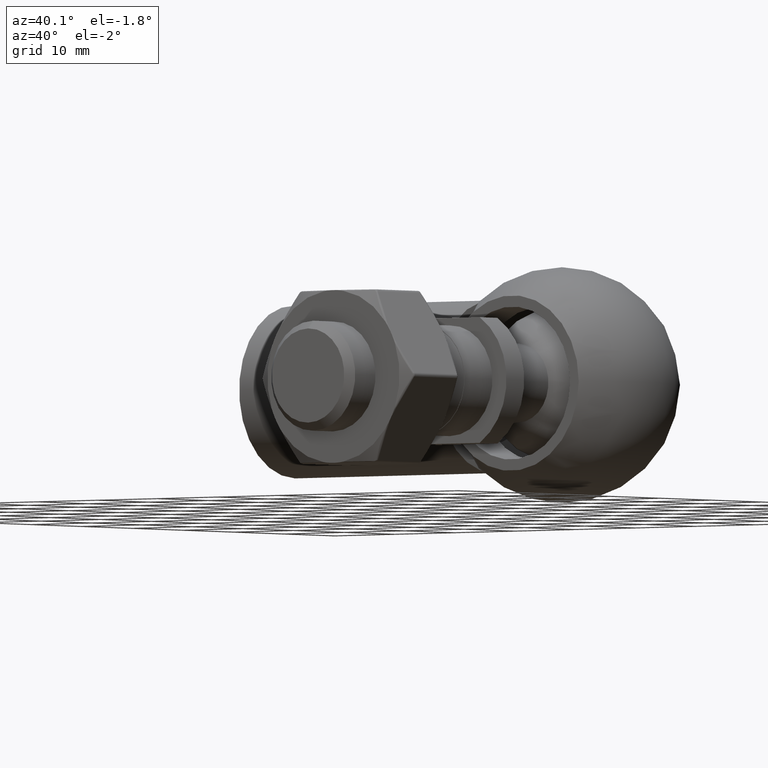
[diagram: clean part render]
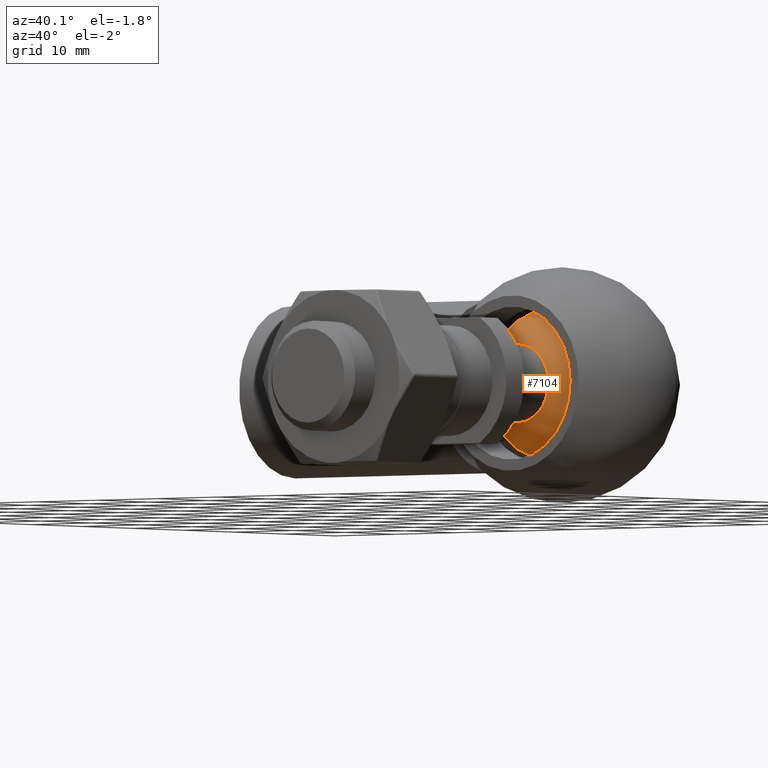
[diagram: same view with one face highlighted and labeled with its STEP entity id]
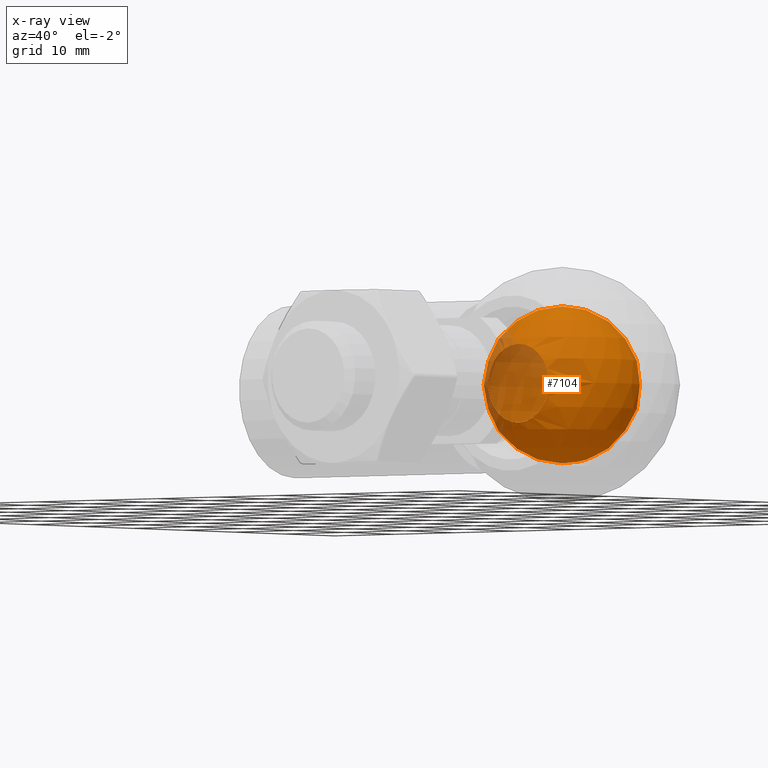
[diagram: x-ray of the same camera — body ghosted, the highlighted face saturated]
A machine part, auxiliary view. The second image highlights one B-rep face of the part: STEP entity #7104.
The next image is the same camera in x-ray: the body ghosted, the highlighted face saturated — about 25% of this face is hidden behind the body in this view.
In plain terms, the highlighted spherical surface has radius 10 mm.
Its self-contained STEP definition (entity closure, byte-faithful):
#1778 = DIRECTION ( 'NONE',  ( 0.000000000000000000, 1.000000000000000000, 0.000000000000000000 ) ) ;
#3029 = SPHERICAL_SURFACE ( 'NONE', #11340, 10.00000000000000888 ) ;
#6546 = VERTEX_POINT ( 'NONE', #6763 ) ;
#6703 = CARTESIAN_POINT ( 'NONE',  ( 0.000000000000000000, 50.21025403784439334, 0.000000000000000000 ) ) ;
#6763 = CARTESIAN_POINT ( 'NONE',  ( 0.000000000000000000, 41.55000000000000426, 5.000000000000017764 ) ) ;
#6771 = DIRECTION ( 'NONE',  ( -1.000000000000000000, 0.000000000000000000, 0.000000000000000000 ) ) ;
#7104 = ADVANCED_FACE ( 'NONE', ( #12039 ), #3029, .T. ) ;
#7253 = AXIS2_PLACEMENT_3D ( 'NONE', #18535, #1778, #9434 ) ;
#7283 = CIRCLE ( 'NONE', #7253, 5.000000000000017764 ) ;
#7483 = EDGE_CURVE ( 'NONE', #6546, #6546, #7283, .T. ) ;
#9434 = DIRECTION ( 'NONE',  ( 0.000000000000000000, 0.000000000000000000, 1.000000000000000000 ) ) ;
#9648 = DIRECTION ( 'NONE',  ( -0.000000000000000000, -0.000000000000000000, -1.000000000000000000 ) ) ;
#11340 = AXIS2_PLACEMENT_3D ( 'NONE', #6703, #9648, #6771 ) ;
#12039 = FACE_OUTER_BOUND ( 'NONE', #19397, .T. ) ;
#13439 = ORIENTED_EDGE ( 'NONE', *, *, #7483, .T. ) ;
#18535 = CARTESIAN_POINT ( 'NONE',  ( 0.000000000000000000, 41.55000000000000426, 0.000000000000000000 ) ) ;
#19397 = EDGE_LOOP ( 'NONE', ( #13439 ) ) ;